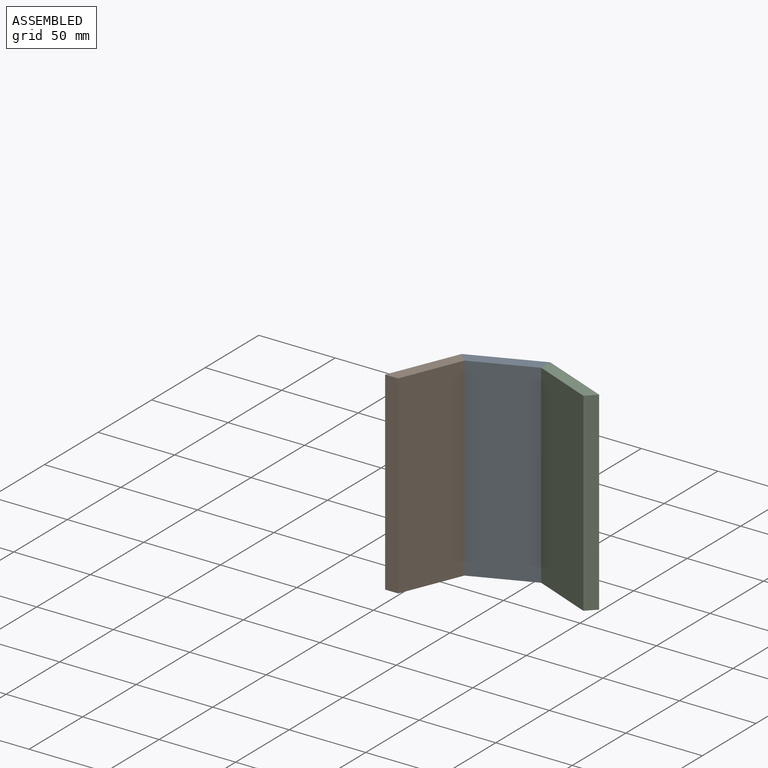
[diagram: assembled view]
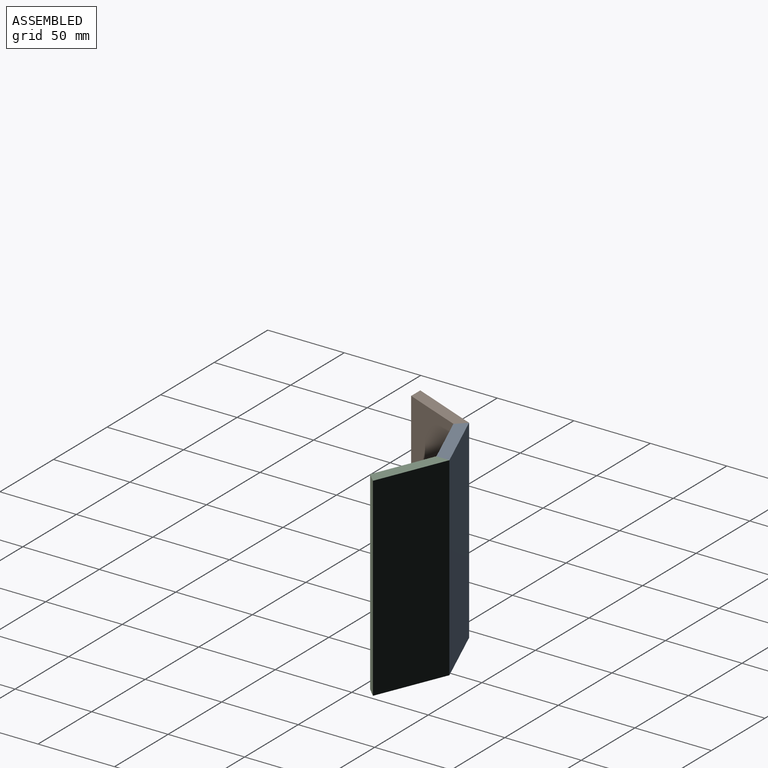
[diagram: assembled view, second angle]
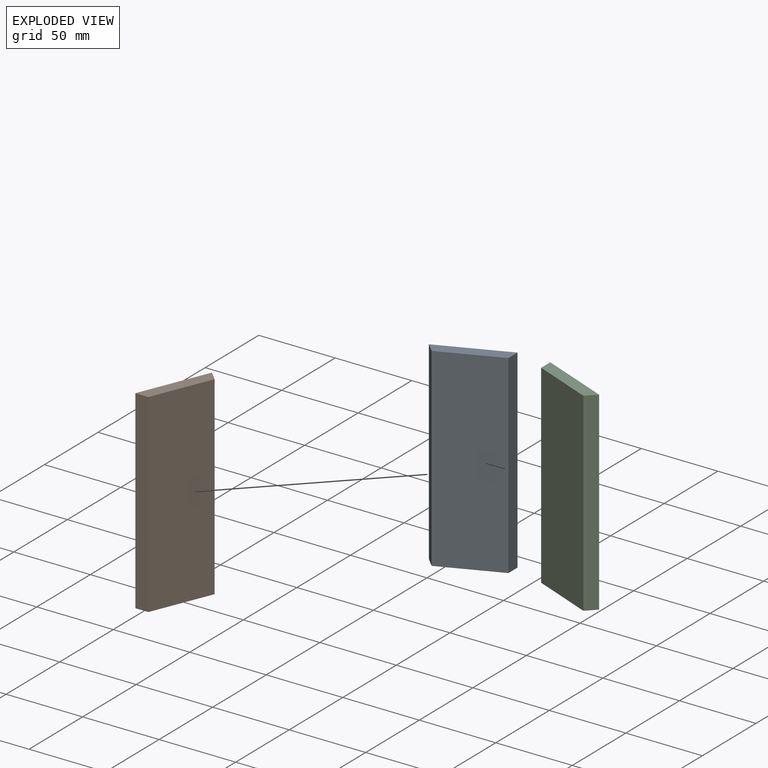
[diagram: exploded view]
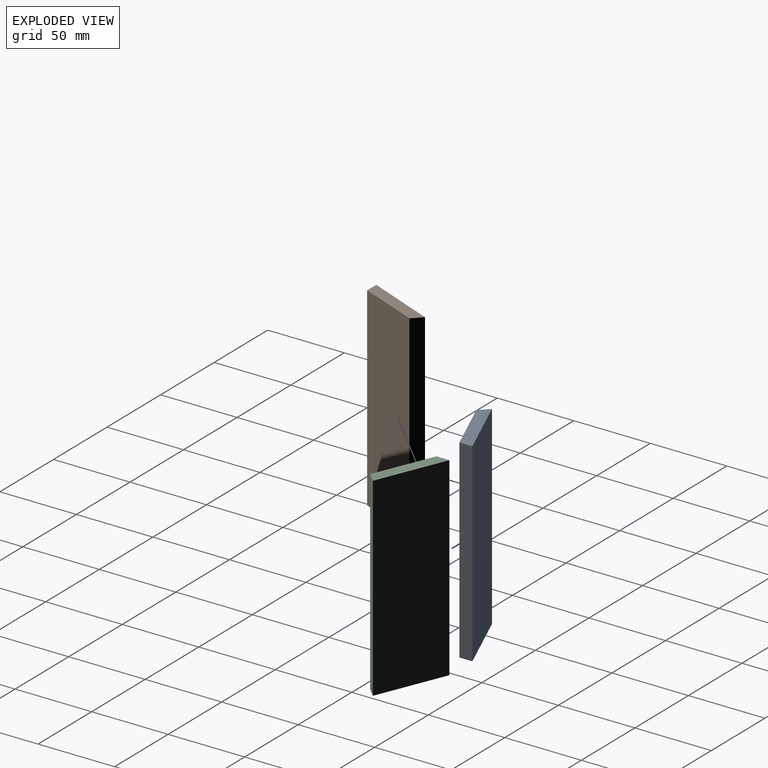
[diagram: exploded view, second angle]
ASSEMBLY  parts=3 mates=3
PART A: 6 faces, bbox 44.9x24.6x127 mm
  f0: plane 127x38.88mm, normal (0.38,-0.92,0), area 5344.7mm2, adj f1,f3,f4,f5
  f1: plane 127x8.51mm, normal (1,0,0), area 1081.3mm2, adj f0,f2,f4,f5
  f2: plane 127x44.9mm, normal (-0.38,0.92,0), area 6172.3mm2, adj f1,f3,f4,f5
  f3: plane 127x6.02mm, normal (-0.71,-0.71,0), area 1081.3mm2, adj f0,f2,f4,f5
  f4: plane 44.9x24.62mm, normal (0,0,1), area 356.7mm2, adj f0,f1,f2,f3
  f5: plane 44.9x24.62mm, normal (0,0,-1), area 356.7mm2, adj f0,f1,f2,f3
PART B: same geometry as A
PART C: same geometry as A
PLACE A t=(6.99,-29.77,-17.98)mm fixed
PLACE B rot(axis=(0,0,1),45deg) t=(6.99,-29.77,-17.98)mm fixed
PLACE C rot(axis=(0,0,-1),45deg) t=(6.99,-29.77,-17.98)mm
MATE planar C.f3 <-> A.f1  axis (-1,0,0) through (6.99,29.47,45.52)mm
MATE planar A.f4 <-> B.f4  axis (0,0,1) through (-13.99,20.88,109.02)mm
MATE planar B.f1 <-> A.f3  axis (0.71,0.71,0) through (-34.9,12.12,45.52)mm
